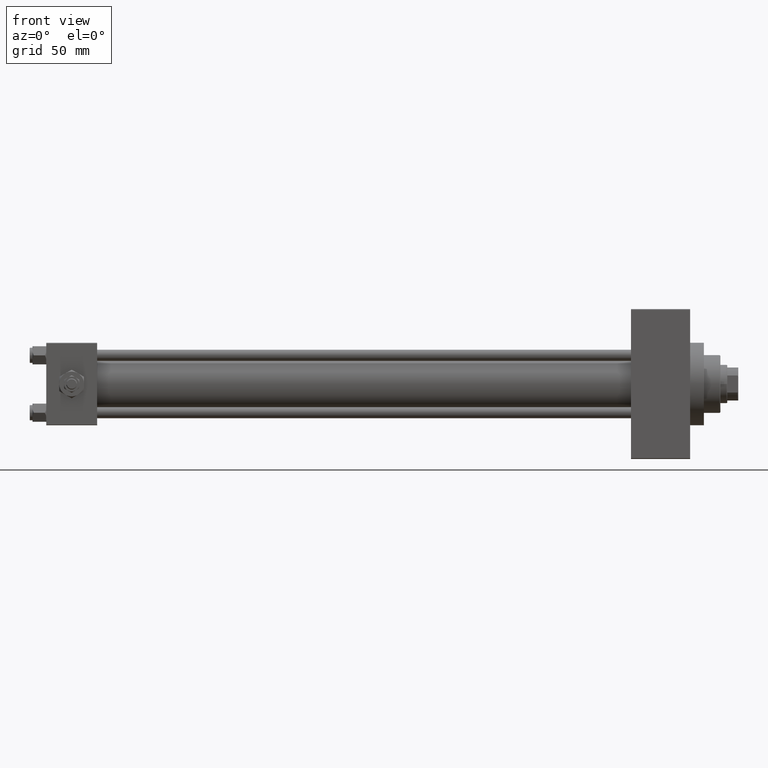
[diagram: clean part render]
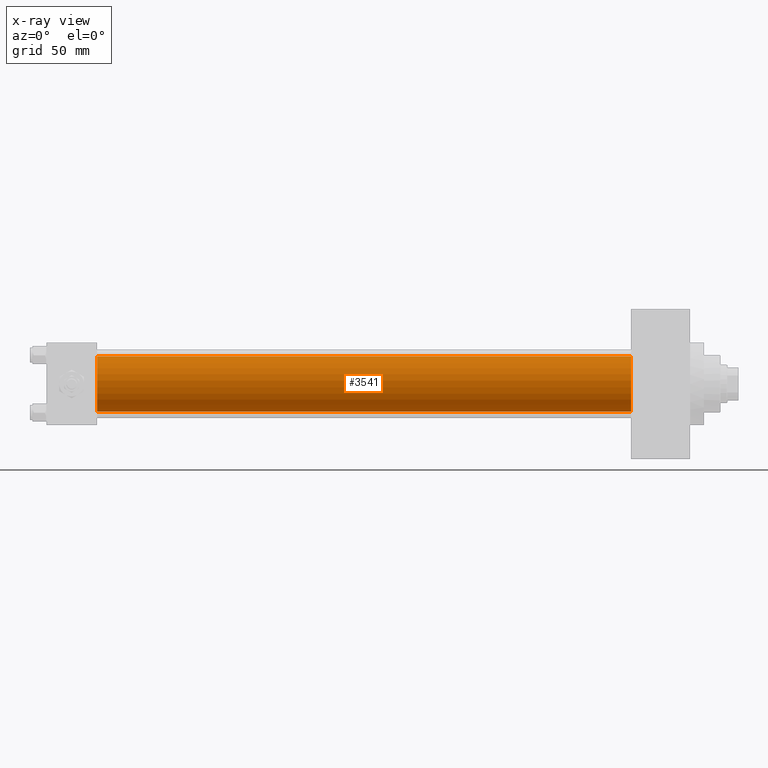
[diagram: x-ray — body ghosted, one internal face saturated and labeled with its STEP entity id]
A machine part, front view, then the same camera in x-ray: the body is ghosted and one INTERNAL B-rep face — a face not visible from any outside direction — is saturated and labeled: STEP entity #3541.
In plain terms, the highlighted cylindrical surface (edge-blend (fillet) strip) has radius 20 mm, axis along (-1, -0, -0).
Its self-contained STEP definition (entity closure, byte-faithful):
#1747 = CYLINDRICAL_SURFACE ( 'NONE', #15965, 20.00000000000000000 ) ;
#1884 = EDGE_LOOP ( 'NONE', ( #37708, #44139, #39950, #19835 ) ) ;
#2757 = LINE ( 'NONE', #6715, #29618 ) ;
#3197 = EDGE_CURVE ( 'NONE', #32174, #11238, #28725, .T. ) ;
#3541 = ADVANCED_FACE ( 'NONE', ( #20340 ), #1747, .F. ) ;
#6715 = CARTESIAN_POINT ( 'NONE',  ( 425.0000000000000000, -2.602085213965210642E-15, 20.00000000000000000 ) ) ;
#7111 = EDGE_CURVE ( 'NONE', #11238, #46708, #39715, .T. ) ;
#8140 = AXIS2_PLACEMENT_3D ( 'NONE', #14892, #48842, #11170 ) ;
#11170 = DIRECTION ( 'NONE',  ( 0.000000000000000000, 0.000000000000000000, -1.000000000000000000 ) ) ;
#11238 = VERTEX_POINT ( 'NONE', #45733 ) ;
#11904 = CARTESIAN_POINT ( 'NONE',  ( 37.00000000000000000, -2.602085213965210642E-15, 20.00000000000000000 ) ) ;
#13874 = CARTESIAN_POINT ( 'NONE',  ( 37.00000000000000000, -2.602085213965210642E-15, 0.000000000000000000 ) ) ;
#14591 = DIRECTION ( 'NONE',  ( 1.000000000000000000, 0.000000000000000000, 0.000000000000000000 ) ) ;
#14892 = CARTESIAN_POINT ( 'NONE',  ( 425.0000000000000000, -2.602085213965210642E-15, 0.000000000000000000 ) ) ;
#15965 = AXIS2_PLACEMENT_3D ( 'NONE', #39170, #35459, #16858 ) ;
#16858 = DIRECTION ( 'NONE',  ( 0.000000000000000000, 0.000000000000000000, 1.000000000000000000 ) ) ;
#17867 = DIRECTION ( 'NONE',  ( -1.000000000000000000, -0.000000000000000000, -0.000000000000000000 ) ) ;
#19835 = ORIENTED_EDGE ( 'NONE', *, *, #40901, .F. ) ;
#20340 = FACE_OUTER_BOUND ( 'NONE', #1884, .T. ) ;
#23946 = AXIS2_PLACEMENT_3D ( 'NONE', #13874, #14591, #44098 ) ;
#24079 = CARTESIAN_POINT ( 'NONE',  ( 425.0000000000000000, -2.602085213965210642E-15, 20.00000000000000000 ) ) ;
#24123 = CARTESIAN_POINT ( 'NONE',  ( 425.0000000000000000, -1.527916156705046464E-16, -20.00000000000000000 ) ) ;
#25655 = CARTESIAN_POINT ( 'NONE',  ( 37.00000000000000000, -1.527916156705046464E-16, -20.00000000000000000 ) ) ;
#28725 = CIRCLE ( 'NONE', #8140, 20.00000000000000000 ) ;
#29618 = VECTOR ( 'NONE', #17867, 1000.000000000000000 ) ;
#31161 = VERTEX_POINT ( 'NONE', #11904 ) ;
#31940 = VECTOR ( 'NONE', #39225, 1000.000000000000000 ) ;
#32174 = VERTEX_POINT ( 'NONE', #24079 ) ;
#35459 = DIRECTION ( 'NONE',  ( -1.000000000000000000, -0.000000000000000000, -0.000000000000000000 ) ) ;
#37708 = ORIENTED_EDGE ( 'NONE', *, *, #3197, .T. ) ;
#39170 = CARTESIAN_POINT ( 'NONE',  ( 425.0000000000000000, -2.602085213965210642E-15, 0.000000000000000000 ) ) ;
#39225 = DIRECTION ( 'NONE',  ( -1.000000000000000000, -0.000000000000000000, -0.000000000000000000 ) ) ;
#39715 = LINE ( 'NONE', #24123, #31940 ) ;
#39950 = ORIENTED_EDGE ( 'NONE', *, *, #45197, .F. ) ;
#40901 = EDGE_CURVE ( 'NONE', #32174, #31161, #2757, .T. ) ;
#44098 = DIRECTION ( 'NONE',  ( 0.000000000000000000, 0.000000000000000000, -1.000000000000000000 ) ) ;
#44139 = ORIENTED_EDGE ( 'NONE', *, *, #7111, .T. ) ;
#45197 = EDGE_CURVE ( 'NONE', #31161, #46708, #46059, .T. ) ;
#45733 = CARTESIAN_POINT ( 'NONE',  ( 425.0000000000000000, -1.527916156705046464E-16, -20.00000000000000000 ) ) ;
#46059 = CIRCLE ( 'NONE', #23946, 20.00000000000000000 ) ;
#46708 = VERTEX_POINT ( 'NONE', #25655 ) ;
#48842 = DIRECTION ( 'NONE',  ( 1.000000000000000000, 0.000000000000000000, 0.000000000000000000 ) ) ;